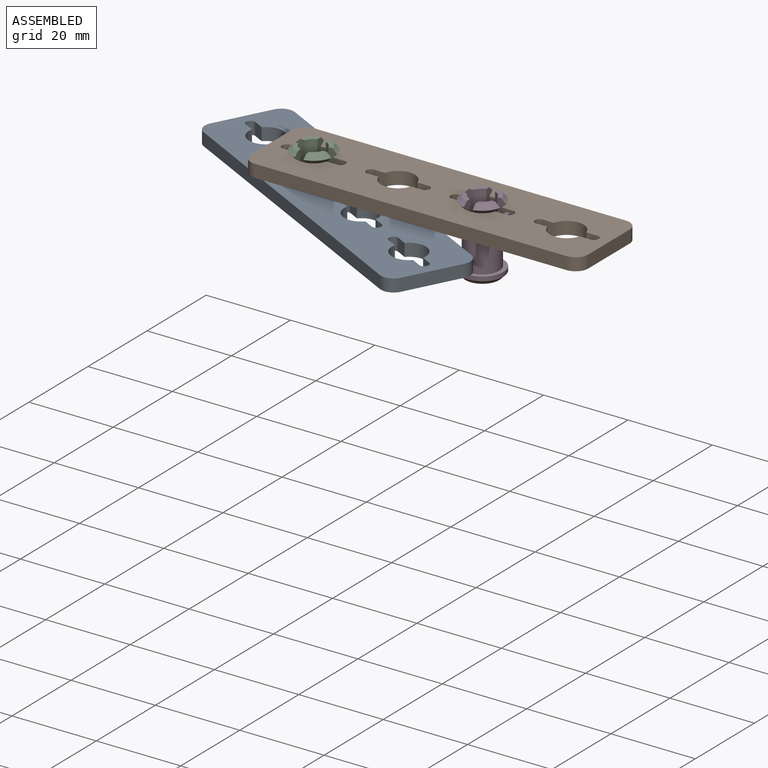
[diagram: assembled view]
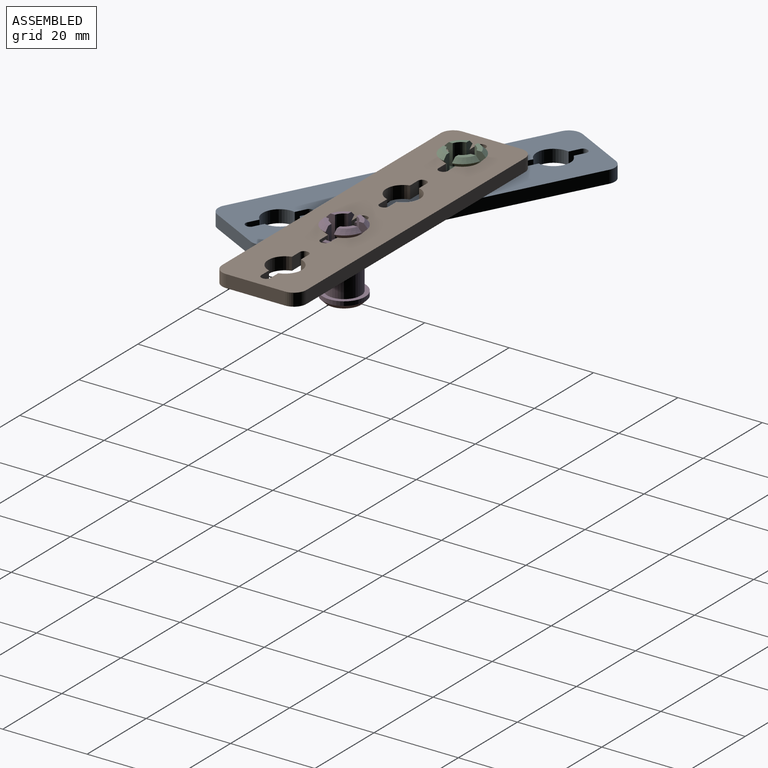
[diagram: assembled view, second angle]
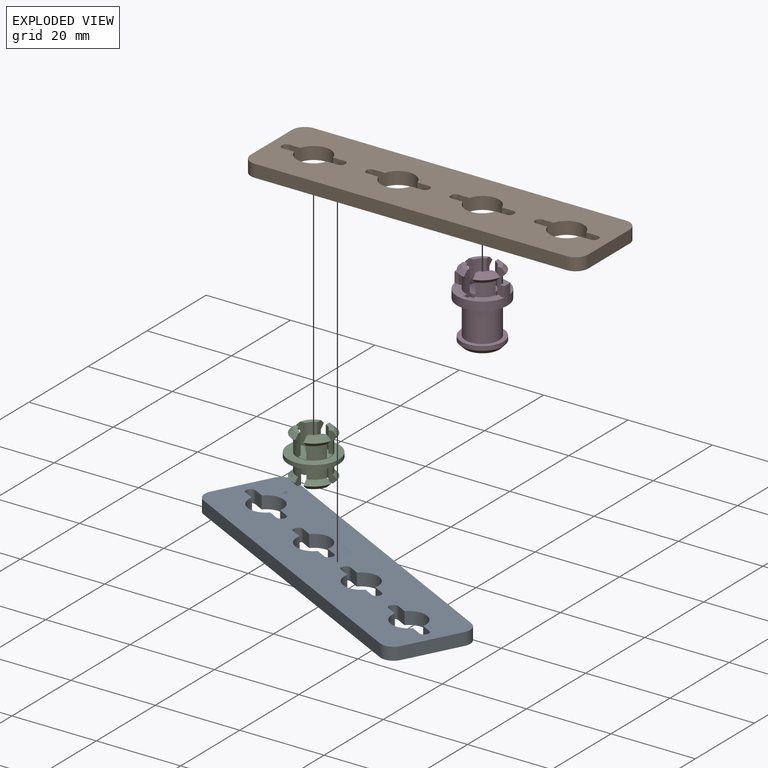
[diagram: exploded view]
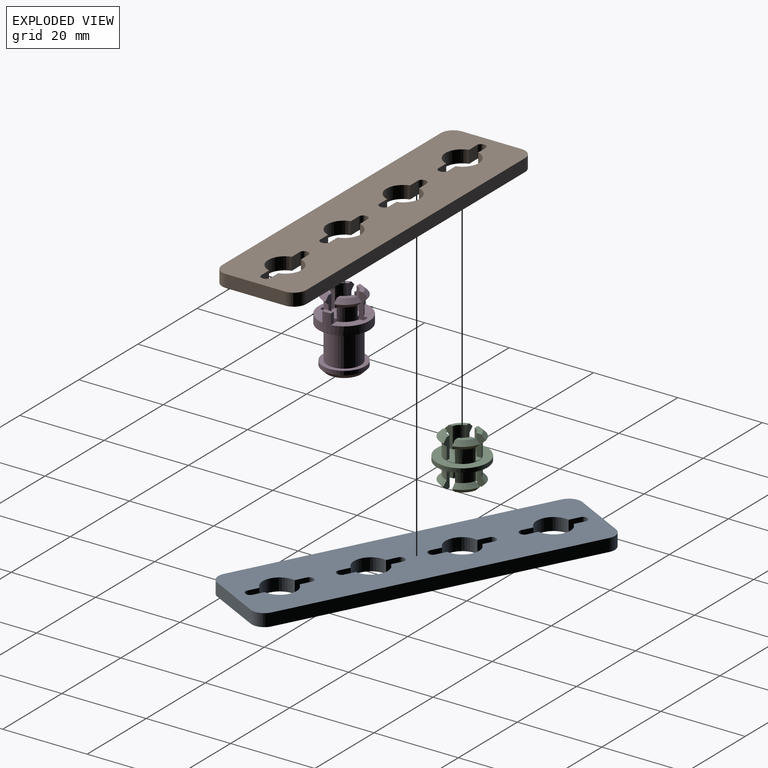
[diagram: exploded view, second angle]
ASSEMBLY  parts=4 mates=3
PART A: 58 faces, bbox 80x20x3 mm
  f0: cylinder r=4mm len=7.7mm, axis (0,0,-1), area 31.1mm2, adj f1,f55,f56,f57
  f1: plane 3x2.63mm, normal (-0.01,1,0), area 7.9mm2, adj f0,f2,f56,f57
  f2: cylinder r=1mm len=3mm, axis (0,0,-1), area 4.7mm2, adj f1,f3,f56,f57
  f3: plane 3x0.18mm, normal (1,0,0), area 0.5mm2, adj f2,f4,f56,f57
  f4: cylinder r=1mm len=3mm, axis (0,0,-1), area 4.7mm2, adj f3,f5,f56,f57
  f5: plane 3x2.63mm, normal (-0.01,-1,0), area 7.9mm2, adj f4,f6,f56,f57
  f6: cylinder r=4mm len=7.7mm, axis (0,0,-1), area 31.1mm2, adj f5,f7,f56,f57
  f7: plane 3x2.65mm, normal (0,-1,0), area 8mm2, adj f6,f8,f56,f57
  f8: cylinder r=1mm len=3mm, axis (0,0,-1), area 4.7mm2, adj f7,f9,f56,f57
  f9: plane 3x0.2mm, normal (-1,0,0), area 0.6mm2, adj f8,f10,f56,f57
  f10: cylinder r=1mm len=3mm, axis (0,0,-1), area 4.7mm2, adj f9,f55,f56,f57
  f11: cylinder r=3mm len=3mm, axis (0,0,-1), area 14.1mm2, adj f12,f51,f56,f57
  f12: plane 74x3mm, normal (0,-1,0), area 222mm2, adj f11,f13,f56,f57
  f13: cylinder r=3mm len=3mm, axis (0,0,-1), area 14.1mm2, adj f12,f14,f56,f57
  f14: plane 14x3mm, normal (1,0,0), area 42mm2, adj f13,f15,f56,f57
  f15: cylinder r=3mm len=3mm, axis (0,0,-1), area 14.1mm2, adj f14,f16,f56,f57
  f16: plane 74x3mm, normal (0,1,0), area 222mm2, adj f15,f17,f56,f57
  f17: cylinder r=3mm len=3mm, axis (0,0,-1), area 14.1mm2, adj f16,f51,f56,f57
  f18: plane 3x2.65mm, normal (0,1,0), area 8mm2, adj f19,f52,f56,f57
  f19: cylinder r=4mm len=7.7mm, axis (0,0,-1), area 31.1mm2, adj f18,f20,f56,f57
  f20: plane 3x2.63mm, normal (-0.01,1,0), area 7.9mm2, adj f19,f21,f56,f57
  f21: cylinder r=1mm len=3mm, axis (0,0,-1), area 4.7mm2, adj f20,f22,f56,f57
  f22: plane 3x0.18mm, normal (1,0,0), area 0.5mm2, adj f21,f23,f56,f57
  f23: cylinder r=1mm len=3mm, axis (0,0,-1), area 4.7mm2, adj f22,f24,f56,f57
  f24: plane 3x2.63mm, normal (-0.01,-1,0), area 7.9mm2, adj f23,f25,f56,f57
  f25: cylinder r=4mm len=7.7mm, axis (0,0,-1), area 31.1mm2, adj f24,f26,f56,f57
  f26: plane 3x2.65mm, normal (0,-1,0), area 8mm2, adj f25,f27,f56,f57
  f27: cylinder r=1mm len=3mm, axis (0,0,-1), area 4.7mm2, adj f26,f28,f56,f57
  f28: plane 3x0.2mm, normal (-1,0,0), area 0.6mm2, adj f27,f52,f56,f57
  f29: plane 3x2.65mm, normal (0,1,0), area 8mm2, adj f30,f53,f56,f57
  f30: cylinder r=4mm len=7.7mm, axis (0,0,-1), area 31.1mm2, adj f29,f31,f56,f57
  f31: plane 3x2.63mm, normal (-0.01,1,0), area 7.9mm2, adj f30,f32,f56,f57
  f32: cylinder r=1mm len=3mm, axis (0,0,-1), area 4.7mm2, adj f31,f33,f56,f57
  f33: plane 3x0.18mm, normal (1,0,0), area 0.5mm2, adj f32,f34,f56,f57
  f34: cylinder r=1mm len=3mm, axis (0,0,-1), area 4.7mm2, adj f33,f35,f56,f57
  f35: plane 3x2.63mm, normal (-0.01,-1,0), area 7.9mm2, adj f34,f36,f56,f57
  f36: cylinder r=4mm len=7.7mm, axis (0,0,-1), area 31.1mm2, adj f35,f37,f56,f57
  f37: plane 3x2.65mm, normal (0,-1,0), area 8mm2, adj f36,f38,f56,f57
  f38: cylinder r=1mm len=3mm, axis (0,0,-1), area 4.7mm2, adj f37,f39,f56,f57
  f39: plane 3x0.2mm, normal (-1,0,0), area 0.6mm2, adj f38,f53,f56,f57
  f40: plane 3x2.65mm, normal (0,1,0), area 8mm2, adj f41,f54,f56,f57
  f41: cylinder r=4mm len=7.7mm, axis (0,0,-1), area 31.1mm2, adj f40,f42,f56,f57
  f42: plane 3x2.63mm, normal (-0.01,1,0), area 7.9mm2, adj f41,f43,f56,f57
  f43: cylinder r=1mm len=3mm, axis (0,0,-1), area 4.7mm2, adj f42,f44,f56,f57
  f44: plane 3x0.18mm, normal (1,0,0), area 0.5mm2, adj f43,f45,f56,f57
  f45: cylinder r=1mm len=3mm, axis (0,0,-1), area 4.7mm2, adj f44,f46,f56,f57
  f46: plane 3x2.63mm, normal (-0.01,-1,0), area 7.9mm2, adj f45,f47,f56,f57
  f47: cylinder r=4mm len=7.7mm, axis (0,0,-1), area 31.1mm2, adj f46,f48,f56,f57
  f48: plane 3x2.65mm, normal (0,-1,0), area 8mm2, adj f47,f49,f56,f57
  f49: cylinder r=1mm len=3mm, axis (0,0,-1), area 4.7mm2, adj f48,f50,f56,f57
  f50: plane 3x0.2mm, normal (-1,0,0), area 0.6mm2, adj f49,f54,f56,f57
  f51: plane 14x3mm, normal (-1,0,0), area 42mm2, adj f11,f17,f56,f57
  f52: cylinder r=1mm len=3mm, axis (0,0,-1), area 4.7mm2, adj f18,f28,f56,f57
  f53: cylinder r=1mm len=3mm, axis (0,0,-1), area 4.7mm2, adj f29,f39,f56,f57
  f54: cylinder r=1mm len=3mm, axis (0,0,-1), area 4.7mm2, adj f40,f50,f56,f57
  f55: plane 3x2.65mm, normal (0,1,0), area 8mm2, adj f0,f10,f56,f57
  f56: plane 80x20mm, normal (0,0,1), area 1332.8mm2, adj f0,f1,f2,f3,f4,f5,f6,f7
  f57: plane 80x20mm, normal (0,0,-1), area 1332.8mm2, adj f0,f1,f2,f3,f4,f5,f6,f7
PART B: same geometry as A
PART C: 57 faces, bbox 12x12x11.2 mm
  f0: cylinder r=4mm len=8mm, axis (0,0,-1), area 53.7mm2, adj f26,f28,f29,f30,f31,f32,f33,f34
  f1: plane 2.87x2.87mm, normal (0,0,1), area 3.7mm2, adj f29,f30,f37,f52
  f2: plane 2.87x2.87mm, normal (0,0,1), area 3.2mm2, adj f33,f34,f39,f48
  f3: plane 2.87x2.87mm, normal (0,0,1), area 3.7mm2, adj f35,f36,f40,f45
  f4: plane 5.1x2.07mm, normal (0,-1,0), area 6.4mm2, adj f6,f7,f8,f9,f43,f44
  f5: plane 5.1x2.07mm, normal (-1,0,0), area 6.4mm2, adj f6,f7,f8,f9,f43,f44
  f6: cylinder r=3mm len=5.1mm, axis (0,0,-1), area 13.6mm2, adj f4,f5,f7,f9
  f7: plane 2.87x2.87mm, normal (0,0,-1), area 3.5mm2, adj f4,f5,f6,f43
  f8: cylinder r=4mm len=3.1mm, axis (0,0,-1), area 13.2mm2, adj f4,f5,f9,f44
  f9: plane 12x12mm, normal (0,0,-1), area 99.2mm2, adj f4,f5,f6,f8,f10,f11,f12,f14
  f10: cylinder r=3mm len=5.1mm, axis (0,0,-1), area 13.6mm2, adj f9,f11,f12,f13
  f11: plane 5.1x2.07mm, normal (1,0,0), area 6.4mm2, adj f9,f10,f13,f14,f41,f42
  f12: plane 5.1x2.07mm, normal (0,-1,0), area 6.4mm2, adj f9,f10,f13,f14,f41,f42
  f13: plane 2.87x2.87mm, normal (0,0,-1), area 3.5mm2, adj f10,f11,f12,f41
  f14: cylinder r=4mm len=3.1mm, axis (0,0,-1), area 13.2mm2, adj f9,f11,f12,f42
  f15: cylinder r=3mm len=5.1mm, axis (0,0,-1), area 13.6mm2, adj f9,f16,f17,f18
  f16: plane 5.1x2.07mm, normal (0,1,0), area 6.4mm2, adj f9,f15,f18,f19,f55,f56
  f17: plane 5.1x2.07mm, normal (1,0,0), area 6.4mm2, adj f9,f15,f18,f19,f55,f56
  f18: plane 2.87x2.87mm, normal (0,0,-1), area 3.5mm2, adj f15,f16,f17,f56
  f19: cylinder r=4mm len=3.1mm, axis (0,0,-1), area 13.2mm2, adj f9,f16,f17,f55
  f20: cylinder r=3mm len=5.1mm, axis (0,0,-1), area 13.6mm2, adj f9,f21,f22,f23
  f21: plane 5.1x2.07mm, normal (-1,0,0), area 6.4mm2, adj f9,f20,f23,f24,f49,f50
  f22: plane 5.1x2.07mm, normal (0,1,0), area 6.4mm2, adj f9,f20,f23,f24,f49,f50
  f23: plane 2.87x2.87mm, normal (0,0,-1), area 3.5mm2, adj f20,f21,f22,f49
  f24: cylinder r=4mm len=3.1mm, axis (0,0,-1), area 13.2mm2, adj f9,f21,f22,f50
  f25: cylinder r=6mm len=12mm, axis (0,0,-1), area 37.7mm2, adj f9,f26
  f26: plane 12x12mm, normal (0,0,1), area 62.8mm2, adj f0,f25
  f27: plane 2.87x2.87mm, normal (0,0,1), area 3.2mm2, adj f31,f32,f38,f54
  f28: plane 8x8mm, normal (0,0,1), area 36.4mm2, adj f0,f29,f30,f31,f32,f33,f34,f35
  f29: plane 5x2.21mm, normal (1,0,0), area 6.9mm2, adj f0,f1,f28,f37,f51,f52
  f30: plane 5x2.12mm, normal (0,-1,0), area 6.5mm2, adj f0,f1,f28,f37,f51,f52
  f31: plane 5x2.03mm, normal (0,1,0), area 6mm2, adj f0,f27,f28,f38,f53,f54
  f32: plane 5x1.93mm, normal (1,0,0), area 5.6mm2, adj f0,f27,f28,f38,f53,f54
  f33: plane 5x1.93mm, normal (-1,0,0), area 5.6mm2, adj f0,f2,f28,f39,f47,f48
  f34: plane 5x2.03mm, normal (0,1,0), area 6mm2, adj f0,f2,f28,f39,f47,f48
  f35: plane 5x2.12mm, normal (0,-1,0), area 6.5mm2, adj f0,f3,f28,f40,f45,f46
  f36: plane 5x2.21mm, normal (-1,0,0), area 6.9mm2, adj f0,f3,f28,f40,f45,f46
  f37: cylinder r=3mm len=5mm, axis (0,0,1), area 12.6mm2, adj f1,f28,f29,f30
  f38: cylinder r=3mm len=5mm, axis (0,0,1), area 14.1mm2, adj f27,f28,f31,f32
  f39: cylinder r=3mm len=5mm, axis (0,0,1), area 14.1mm2, adj f2,f28,f33,f34
  f40: cylinder r=3mm len=5mm, axis (0,0,1), area 12.6mm2, adj f3,f28,f35,f36
  f41: cone r=5mm half-angle=45deg, axis (0,0,1), area 7.1mm2, adj f11,f12,f13,f42
  f42: cone r=4mm half-angle=45deg, axis (0,0,-1), area 7.1mm2, adj f11,f12,f14,f41
  f43: cone r=5mm half-angle=45deg, axis (0,0,1), area 7.1mm2, adj f4,f5,f7,f44
  f44: cone r=4mm half-angle=45deg, axis (0,0,-1), area 7.1mm2, adj f4,f5,f8,f43
  f45: cone r=4mm half-angle=45deg, axis (0,0,-1), area 7.1mm2, adj f3,f35,f36,f46
  f46: cone r=5mm half-angle=45deg, axis (0,0,1), area 7.1mm2, adj f0,f35,f36,f45
  f47: cone r=5mm half-angle=45deg, axis (0,0,1), area 7.1mm2, adj f0,f33,f34,f48
  f48: cone r=4mm half-angle=45deg, axis (0,0,-1), area 7.1mm2, adj f2,f33,f34,f47
  f49: cone r=5mm half-angle=45deg, axis (0,0,1), area 7.1mm2, adj f21,f22,f23,f50
  f50: cone r=4mm half-angle=45deg, axis (0,0,-1), area 7.1mm2, adj f21,f22,f24,f49
  f51: cone r=5mm half-angle=45deg, axis (0,0,1), area 7.1mm2, adj f0,f29,f30,f52
  f52: cone r=4mm half-angle=45deg, axis (0,0,-1), area 7.1mm2, adj f1,f29,f30,f51
  f53: cone r=5mm half-angle=45deg, axis (0,0,1), area 7.1mm2, adj f0,f31,f32,f54
  f54: cone r=4mm half-angle=45deg, axis (0,0,-1), area 7.1mm2, adj f27,f31,f32,f53
  f55: cone r=4mm half-angle=45deg, axis (0,0,-1), area 7.1mm2, adj f16,f17,f19,f56
  f56: cone r=5mm half-angle=45deg, axis (0,0,1), area 7.1mm2, adj f16,f17,f18,f55
PART D: 61 faces, bbox 12x12x17.1 mm
  f0: plane 11.83x5mm, normal (0,0,1), area 25.3mm2, adj f2,f4,f18,f21,f24,f41,f43,f44
  f1: plane 11.83x5mm, normal (0,0,1), area 25.3mm2, adj f3,f5,f18,f20,f23,f33,f35,f36
  f2: cylinder r=4mm len=3.1mm, axis (0,0,-1), area 13.2mm2, adj f0,f43,f49,f55
  f3: cylinder r=4mm len=3.1mm, axis (0,0,-1), area 13mm2, adj f1,f33,f48,f59
  f4: cylinder r=4mm len=3.1mm, axis (0,0,-1), area 13.1mm2, adj f0,f41,f45,f54
  f5: cylinder r=4mm len=3.1mm, axis (0,0,-1), area 13.3mm2, adj f1,f35,f39,f57
  f6: plane 2.87x2.87mm, normal (0,0,1), area 3.5mm2, adj f10,f43,f49,f56
  f7: plane 2.85x2.81mm, normal (0,0,1), area 3.4mm2, adj f13,f33,f48,f60
  f8: plane 2.86x2.85mm, normal (0,0,1), area 3.4mm2, adj f11,f41,f45,f53
  f9: plane 2.91x2.88mm, normal (0,0,1), area 3.5mm2, adj f12,f35,f39,f58
  f10: cylinder r=3mm len=5.1mm, axis (0,0,-1), area 13.6mm2, adj f6,f32,f43,f49
  f11: cylinder r=3mm len=5.1mm, axis (0,0,-1), area 13.5mm2, adj f8,f32,f41,f45
  f12: cylinder r=3mm len=5.1mm, axis (0,0,-1), area 13.8mm2, adj f9,f32,f35,f39
  f13: cylinder r=3mm len=5.1mm, axis (0,0,-1), area 13.3mm2, adj f7,f32,f33,f48
  f14: plane 8x8mm, normal (0,0,-1), area 31.7mm2, adj f26,f27,f28,f29,f31
  f15: cylinder r=5mm len=10mm, axis (0,0,-1), area 31.4mm2, adj f16,f31
  f16: plane 10x10mm, normal (0,0,1), area 28.3mm2, adj f15,f17
  f17: cylinder r=4mm len=8mm, axis (0,0,-1), area 201.1mm2, adj f16,f19
  f18: cylinder r=6mm len=12mm, axis (0,0,-1), area 85.4mm2, adj f0,f1,f19,f20,f21,f22,f23,f24
  f19: plane 12x12mm, normal (0,0,-1), area 62.8mm2, adj f17,f18
  f20: plane 2.5x1.02mm, normal (0,-1,0), area 2.5mm2, adj f1,f18,f22,f38
  f21: plane 2.5x1.02mm, normal (0,1,0), area 2.5mm2, adj f0,f18,f22,f38
  f22: plane 2x1.1mm, normal (0,0,1), area 2mm2, adj f18,f20,f21,f38
  f23: plane 2.5x1.02mm, normal (0,-1,0), area 2.5mm2, adj f1,f18,f25,f51
  f24: plane 2.5x1.02mm, normal (0,1,0), area 2.5mm2, adj f0,f18,f25,f51
  f25: plane 2x1.1mm, normal (0,0,1), area 2mm2, adj f18,f23,f24,f51
  f26: plane 8x5.2mm, normal (-1,0,0), area 41.6mm2, adj f14,f27,f29,f30
  f27: cylinder r=3.05mm len=8mm, axis (0,0,-1), area 26.9mm2, adj f14,f26,f28,f30
  f28: plane 8x5.2mm, normal (1,0,0), area 41.6mm2, adj f14,f27,f29,f30
  f29: cylinder r=3.05mm len=8mm, axis (0,0,-1), area 26.9mm2, adj f14,f26,f28,f30
  f30: plane 6.11x3.2mm, normal (0,0,-1), area 18.6mm2, adj f26,f27,f28,f29
  f31: cone r=5mm half-angle=45deg, axis (0,0,1), area 40mm2, adj f14,f15
  f32: plane 6x6mm, normal (0,0,1), area 28.3mm2, adj f10,f11,f12,f13,f34,f40,f46,f50
  f33: plane 6x2.08mm, normal (-1,-0.01,0), area 8.2mm2, adj f1,f3,f7,f13,f34,f36,f37,f59
  f34: cylinder r=3mm len=2.04mm, axis (0,0,1), area 1.9mm2, adj f32,f33,f35,f37
  f35: plane 6x2.07mm, normal (1,0.01,0), area 8.2mm2, adj f1,f5,f9,f12,f34,f36,f37,f57
  f36: cylinder r=5mm len=2.04mm, axis (0,0,1), area 1.8mm2, adj f1,f33,f35,f37
  f37: plane 2.19x2.06mm, normal (0,0,1), area 4.1mm2, adj f33,f34,f35,f36
  f38: cylinder r=5mm len=3.4mm, axis (0,0,1), area 6.8mm2, adj f20,f21,f22,f39,f41,f42
  f39: plane 6x2.07mm, normal (0,1,0), area 8.2mm2, adj f1,f5,f9,f12,f38,f40,f42,f57
  f40: cylinder r=3mm len=2mm, axis (0,0,1), area 1.8mm2, adj f32,f39,f41,f42
  f41: plane 6x2.07mm, normal (0,-1,0), area 8.2mm2, adj f0,f4,f8,f11,f38,f40,f42,f53
  f42: plane 2.17x2mm, normal (0,0,1), area 4mm2, adj f38,f39,f40,f41
  f43: plane 6x2.08mm, normal (-1,-0.01,0), area 8.2mm2, adj f0,f2,f6,f10,f44,f46,f47,f55
  f44: cylinder r=5mm len=2.04mm, axis (0,0,1), area 1.8mm2, adj f0,f43,f45,f47
  f45: plane 6x2.07mm, normal (1,0.01,0), area 8.2mm2, adj f0,f4,f8,f11,f44,f46,f47,f53
  f46: cylinder r=3mm len=2.04mm, axis (0,0,1), area 1.9mm2, adj f32,f43,f45,f47
  f47: plane 2.18x2.06mm, normal (0,0,1), area 4.1mm2, adj f43,f44,f45,f46
  f48: plane 6x2.07mm, normal (0,1,0), area 8.2mm2, adj f1,f3,f7,f13,f50,f51,f52,f59
  f49: plane 6x2.07mm, normal (0,-1,0), area 8.2mm2, adj f0,f2,f6,f10,f50,f51,f52,f55
  f50: cylinder r=3mm len=2mm, axis (0,0,1), area 1.8mm2, adj f32,f48,f49,f52
  f51: cylinder r=5mm len=3.4mm, axis (0,0,1), area 6.8mm2, adj f23,f24,f25,f48,f49,f52
  f52: plane 2.17x2mm, normal (0,0,1), area 4mm2, adj f48,f49,f50,f51
  f53: cone r=4mm half-angle=45deg, axis (0,0,-1), area 7.1mm2, adj f8,f41,f45,f54
  f54: cone r=5mm half-angle=45deg, axis (0,0,1), area 7.1mm2, adj f4,f41,f45,f53
  f55: cone r=5mm half-angle=45deg, axis (0,0,1), area 7.2mm2, adj f2,f43,f49,f56
  f56: cone r=4mm half-angle=45deg, axis (0,0,-1), area 7.2mm2, adj f6,f43,f49,f55
  f57: cone r=5mm half-angle=45deg, axis (0,0,1), area 7.2mm2, adj f5,f35,f39,f58
  f58: cone r=4mm half-angle=45deg, axis (0,0,-1), area 7.2mm2, adj f9,f35,f39,f57
  f59: cone r=5mm half-angle=45deg, axis (0,0,1), area 7mm2, adj f3,f33,f48,f60
  f60: cone r=4mm half-angle=45deg, axis (0,0,-1), area 7mm2, adj f7,f33,f48,f59
PLACE A rot(axis=(0,0,-1),27.5deg) t=(-2.21,40.63,24.51)mm
PLACE B t=(12.07,43.97,28.71)mm fixed
PLACE C t=(-11.9,30.59,22.51)mm
PLACE D t=(28.1,30.59,16.61)mm
MATE fastened C.f0 <-> B.f0  axis (0,0,1) through (-11.9,30.59,31.71)mm
MATE fastened D.f2 <-> B.f30  axis (0,0,1) through (28.1,30.59,31.71)mm
MATE revolute C.f0 <-> A.f19  axis (0,0,1) through (-11.9,30.59,24.51)mm
